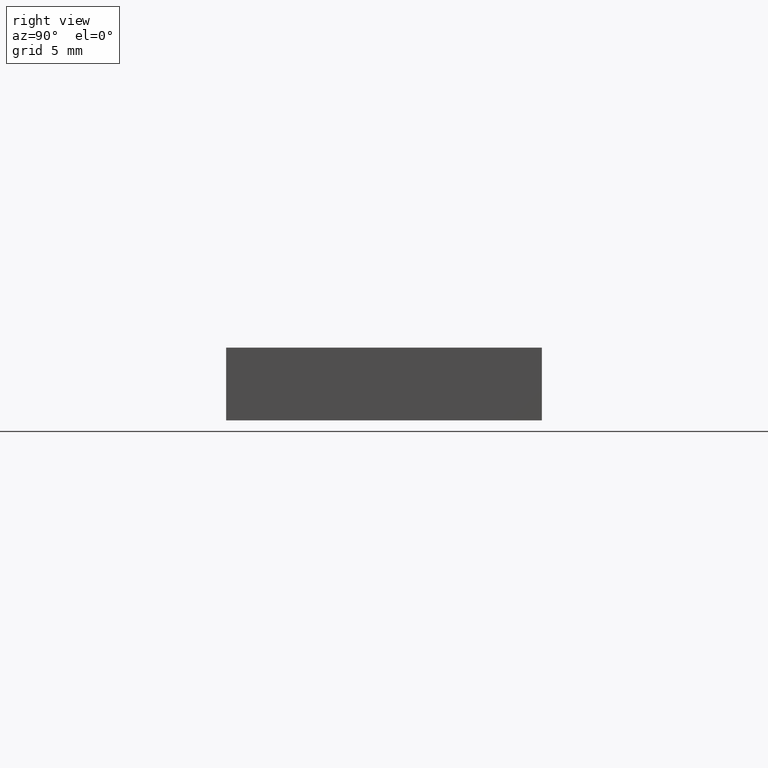
[diagram: clean part render]
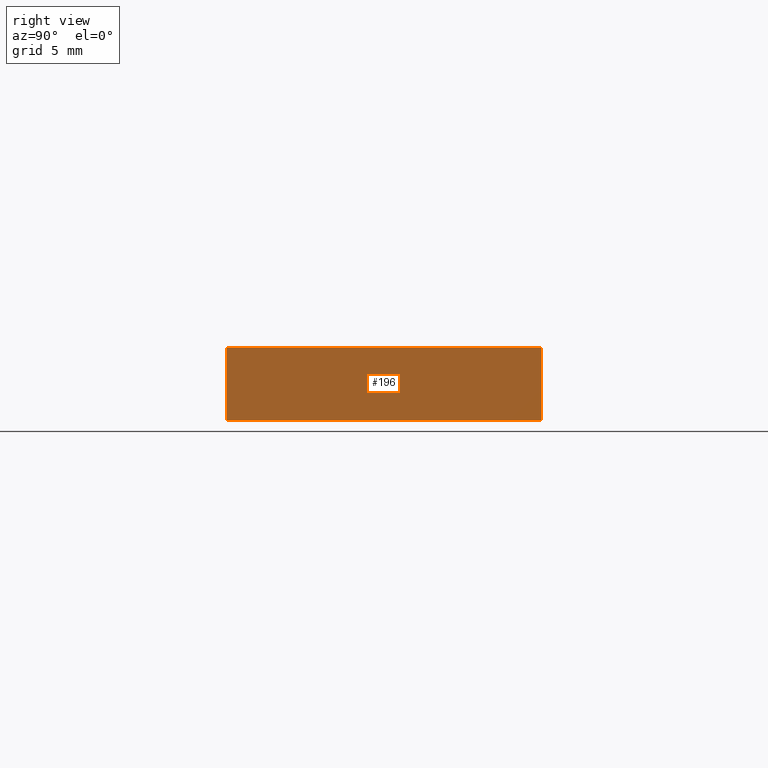
[diagram: same view with one face highlighted and labeled with its STEP entity id]
A machine part, right view. The second image highlights one B-rep face of the part: STEP entity #196.
In plain terms, the highlighted planar face has unit normal (-1, 0, 0).
Its self-contained STEP definition (entity closure, byte-faithful):
#10 = ORIENTED_EDGE ( 'NONE', *, *, #189, .T. ) ;
#13 = CARTESIAN_POINT ( 'NONE',  ( 15.03124999999999645, -6.499999999999990230, 0.0000000000000000000 ) ) ;
#20 = DIRECTION ( 'NONE',  ( 1.334402673828314079E-16, 1.000000000000000000, -0.0000000000000000000 ) ) ;
#25 = ORIENTED_EDGE ( 'NONE', *, *, #60, .F. ) ;
#34 = CARTESIAN_POINT ( 'NONE',  ( 15.03124999999999822, 6.500000000000000888, 0.0000000000000000000 ) ) ;
#49 = CARTESIAN_POINT ( 'NONE',  ( 15.03124999999999645, -6.499999999999990230, 3.000000000000000000 ) ) ;
#60 = EDGE_CURVE ( 'NONE', #96, #175, #195, .T. ) ;
#63 = LINE ( 'NONE', #34, #134 ) ;
#68 = CARTESIAN_POINT ( 'NONE',  ( 15.03124999999999645, -6.499999999999990230, 3.000000000000000000 ) ) ;
#78 = DIRECTION ( 'NONE',  ( 1.334402673828314079E-16, 1.000000000000000000, -0.0000000000000000000 ) ) ;
#91 = ORIENTED_EDGE ( 'NONE', *, *, #213, .F. ) ;
#95 = VECTOR ( 'NONE', #237, 1000.000000000000000 ) ;
#96 = VERTEX_POINT ( 'NONE', #49 ) ;
#97 = LINE ( 'NONE', #68, #228 ) ;
#99 = CARTESIAN_POINT ( 'NONE',  ( 15.03124999999999822, 6.500000000000000888, 0.0000000000000000000 ) ) ;
#101 = VERTEX_POINT ( 'NONE', #99 ) ;
#110 = ORIENTED_EDGE ( 'NONE', *, *, #211, .T. ) ;
#116 = CARTESIAN_POINT ( 'NONE',  ( 15.03124999999999822, 6.500000000000000888, 3.000000000000000000 ) ) ;
#117 = VERTEX_POINT ( 'NONE', #13 ) ;
#121 = CARTESIAN_POINT ( 'NONE',  ( 15.03124999999999822, 6.500000000000000888, 3.000000000000000000 ) ) ;
#134 = VECTOR ( 'NONE', #20, 1000.000000000000000 ) ;
#145 = PLANE ( 'NONE',  #150 ) ;
#150 = AXIS2_PLACEMENT_3D ( 'NONE', #202, #233, #197 ) ;
#164 = CARTESIAN_POINT ( 'NONE',  ( 15.03124999999999822, 6.500000000000000888, 3.000000000000000000 ) ) ;
#175 = VERTEX_POINT ( 'NONE', #121 ) ;
#177 = FACE_OUTER_BOUND ( 'NONE', #222, .T. ) ;
#179 = LINE ( 'NONE', #164, #95 ) ;
#189 = EDGE_CURVE ( 'NONE', #117, #101, #63, .T. ) ;
#195 = LINE ( 'NONE', #116, #231 ) ;
#196 = ADVANCED_FACE ( 'NONE', ( #177 ), #145, .F. ) ;
#197 = DIRECTION ( 'NONE',  ( -1.334402673828314079E-16, -1.000000000000000000, 0.0000000000000000000 ) ) ;
#202 = CARTESIAN_POINT ( 'NONE',  ( 15.03124999999999822, 6.500000000000000888, 3.000000000000000000 ) ) ;
#211 = EDGE_CURVE ( 'NONE', #96, #117, #97, .T. ) ;
#213 = EDGE_CURVE ( 'NONE', #175, #101, #179, .T. ) ;
#222 = EDGE_LOOP ( 'NONE', ( #10, #91, #25, #110 ) ) ;
#228 = VECTOR ( 'NONE', #232, 1000.000000000000000 ) ;
#231 = VECTOR ( 'NONE', #78, 1000.000000000000000 ) ;
#232 = DIRECTION ( 'NONE',  ( -0.0000000000000000000, -0.0000000000000000000, -1.000000000000000000 ) ) ;
#233 = DIRECTION ( 'NONE',  ( -1.000000000000000000, 1.334402673828314079E-16, 0.0000000000000000000 ) ) ;
#237 = DIRECTION ( 'NONE',  ( -0.0000000000000000000, -0.0000000000000000000, -1.000000000000000000 ) ) ;